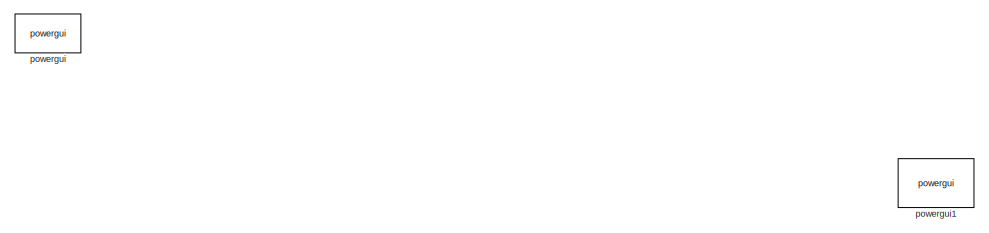
[diagram: root canvas - part 1/2, top left region]
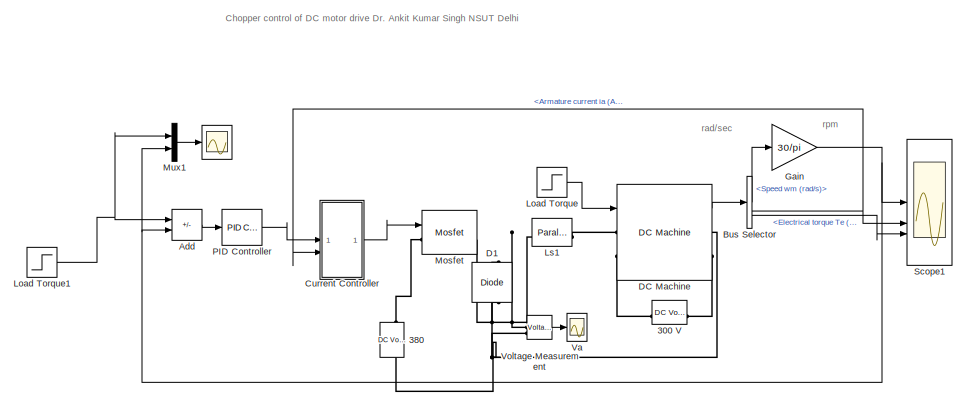
[diagram: root canvas - part 2/2, middle right region]
MODEL slx_81d743ff6258
KIND model
CONFIG AbsTol = auto
CONFIG EnableMultiTasking = on
CONFIG FixedStep = auto
CONFIG MaxStep = auto
CONFIG MinStep = auto
CONFIG RelTol = 1e-3
CONFIG SampleTimeConstraint = Unconstrained
CONFIG SolverName = ode23t
CONFIG StartTime = 0.0
CONFIG StopTime = 3
BLOCK [Scope]  
  Floating = off
  NameLocation = top
  NumInputPorts = 1
  ScopeSpecificationString = Simulink.scopes.TimeScopeBlockCfg('CurrentConfiguration', extmgr.ConfigurationSet(extmgr.Configuration('Core','General UI',true),extmgr.Configuration('Core','Source UI',true),extmgr.Configuration('Sources','WiredSimulink',true,'DataLoggingVariableName','ScopeData2','DataLoggingSaveFormat','StructureWithTime','DataLoggingMaxPoints','5000000','DataLoggingLimitDataPoints',true,'DataLoggingDecimation'...<+1838ch>
BLOCK [Reference] 300 V  REF=spsDCVoltageSourceLib/DC Voltage Source
  AttributesFormatString = \n
  Description = source block
  LibrarySourceBlock = sps_lib/Sources/DC Voltage Source
  SourceBlock = spsDCVoltageSourceLib/DC Voltage Source
  SourceType = DC Voltage Source
BLOCK [Reference] 380  REF=spsDCVoltageSourceLib/DC Voltage Source
  AttributesFormatString = \n
  Description = source block
  LibrarySourceBlock = sps_lib/Sources/DC Voltage Source
  NameLocation = left
  SourceBlock = spsDCVoltageSourceLib/DC Voltage Source
  SourceType = DC Voltage Source
BLOCK [Sum] Add
  IconShape = rectangular
  Inputs = +-
BLOCK [BusSelector] Bus Selector
  OutputSignals = Speed wm (rad/s),Armature current ia (A),Electrical torque Te (n m)
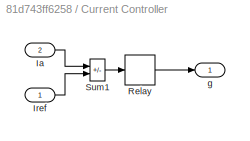
BLOCK [SubSystem] Current Controller
BLOCK [Inport] Current Controller/Ia
  Port = 2
BLOCK [Inport] Current Controller/Iref
BLOCK [Relay] Current Controller/Relay
  OffSwitchValue = -h/2
  OnSwitchValue = h/2
BLOCK [Sum] Current Controller/Sum1
  IconShape = rectangular
  InputSameDT = on
  Inputs = -+
  OutDataTypeStr = Inherit: Same as first input
  SaturateOnIntegerOverflow = on
BLOCK [Outport] Current Controller/g
  InitialOutput = 0
BLOCK [Reference] D1  REF=spsDiodeLib/Diode
  AttributesFormatString = \n
  LibrarySourceBlock = sps_lib/Power Electronics/Diode
  NameLocation = right
  SourceBlock = spsDiodeLib/Diode
  SourceType = Diode
BLOCK [Reference] DC Machine  REF=spsDCMachineLib/DC Machine
  AttributesFormatString = \n
  LibrarySourceBlock = sps_lib/Electrical Machines/DC Machine
  SourceBlock = spsDCMachineLib/DC Machine
  SourceType = DC machine
BLOCK [Gain] Gain
  Gain = 30/pi
BLOCK [Step] Load Torque
  After = 14
  Before = 12
  SampleTime = 0
  Time = 0.75
BLOCK [Step] Load Torque1
  After = 1000
  Before = 600
  SampleTime = 0
  Time = 2
BLOCK [Reference] Ls1  REF=spsParallelRLCBranchLib/Parallel RLC Branch
  AttributesFormatString = \n
  LibrarySourceBlock = sps_lib/Passives/Parallel RLC Branch
  NameLocation = top
  SourceBlock = spsParallelRLCBranchLib/Parallel RLC Branch
  SourceType = Parallel RLC Branch
BLOCK [Reference] Mosfet  REF=spsMosfetLib/Mosfet
  LibrarySourceBlock = sps_lib/Power Electronics/Mosfet
  SourceBlock = spsMosfetLib/Mosfet
  SourceType = Mosfet
BLOCK [Mux] Mux1
  DisplayOption = bar
  Inputs = 2
BLOCK [Reference] PID Controller  REF=slpidlib/PID Controller
  SourceBlock = slpidlib/PID Controller
  SourceType = PID 1dof
BLOCK [Scope] Scope1
  Floating = off
  NumInputPorts = 3
  ScopeSpecificationString = Simulink.scopes.TimeScopeBlockCfg('CurrentConfiguration', extmgr.ConfigurationSet(extmgr.Configuration('Core','General UI',true),extmgr.Configuration('Core','Source UI',true),extmgr.Configuration('Sources','WiredSimulink',true,'DataLoggingVariableName','ScopeData1','DataLoggingSaveFormat','StructureWithTime','DataLoggingMaxPoints','5000000','DataLoggingLimitDataPoints',true,'DataLoggingDecimation'...<+3184ch>
BLOCK [Scope] Va
  Floating = off
  NumInputPorts = 1
  ScopeSpecificationString = Simulink.scopes.TimeScopeBlockCfg('CurrentConfiguration', extmgr.ConfigurationSet(extmgr.Configuration('Core','General UI',true),extmgr.Configuration('Core','Source UI',true),extmgr.Configuration('Sources','WiredSimulink',true,'DataLoggingSaveFormat','StructureWithTime','DataLoggingMaxPoints','5000000','DataLoggingLimitDataPoints',true,'DataLoggingDecimation','1','DataLoggingDecimateData',true,'Da...<+1663ch>
BLOCK [Reference] Voltage Measurement  REF=spsVoltageMeasurementLib/Voltage Measurement
  LibrarySourceBlock = sps_lib/Sensors and Measurements/Voltage Measurement
  SourceBlock = spsVoltageMeasurementLib/Voltage Measurement
  SourceType = Voltage Measurement
BLOCK [Reference] powergui  REF=spspowerguiLib/powergui
  Priority = 1
  SourceBlock = spspowerguiLib/powergui
  SourceType = PSB option menu block
BLOCK [Reference] powergui1  REF=spspowerguiLib/powergui
  Priority = 1
  SourceBlock = spspowerguiLib/powergui
  SourceType = PSB option menu block
ANNOTATION (root): Chopper control of DC motor drive Dr. Ankit Kumar Singh NSUT Delhi
ANNOTATION (root): rad/sec
ANNOTATION (root): rpm
LINE Add:1 -> PID Controller:1
LINE Bus Selector:1 -> Gain:1
NET Bus Selector:2 -> Current Controller:2, Scope1:2
LINE Bus Selector:3 -> Scope1:3
LINE Current Controller/Ia:1 -> Current Controller/Sum1:1
LINE Current Controller/Iref:1 -> Current Controller/Sum1:2
LINE Current Controller/Relay:1 -> Current Controller/g:1
LINE Current Controller/Sum1:1 -> Current Controller/Relay:1
LINE Current Controller:1 -> Mosfet:1
LINE DC Machine:1 -> Bus Selector:1
NET Gain:1 -> Add:2, Mux1:2, Scope1:1
NET Load Torque1:1 -> Add:1, Mux1:1
LINE Load Torque:1 -> DC Machine:1
LINE Mux1:1 ->  :1
LINE PID Controller:1 -> Current Controller:1
LINE Voltage Measurement:1 -> Va:1
PLINE 300 V:LConn1 -- DC Machine:RConn2
PLINE 300 V:RConn1 -- DC Machine:LConn2
PNET net1: 380:LConn1 -- D1:LConn1 -- DC Machine:RConn1 -- Voltage Measurement:LConn2
PLINE 380:RConn1 -- Mosfet:LConn1
PNET net2: D1:RConn1 -- Ls1:LConn1 -- Mosfet:RConn1 -- Voltage Measurement:LConn1
PLINE DC Machine:LConn1 -- Ls1:RConn1
note: NET lines group one-source signal fan-out (src -> all destinations, sorted); 1:1 wires keep LINE; PNET lines group multi-terminal physical nets as a canonical sorted terminal list (undirected conserving connections); 2-terminal nets keep the pairwise PLINE form
